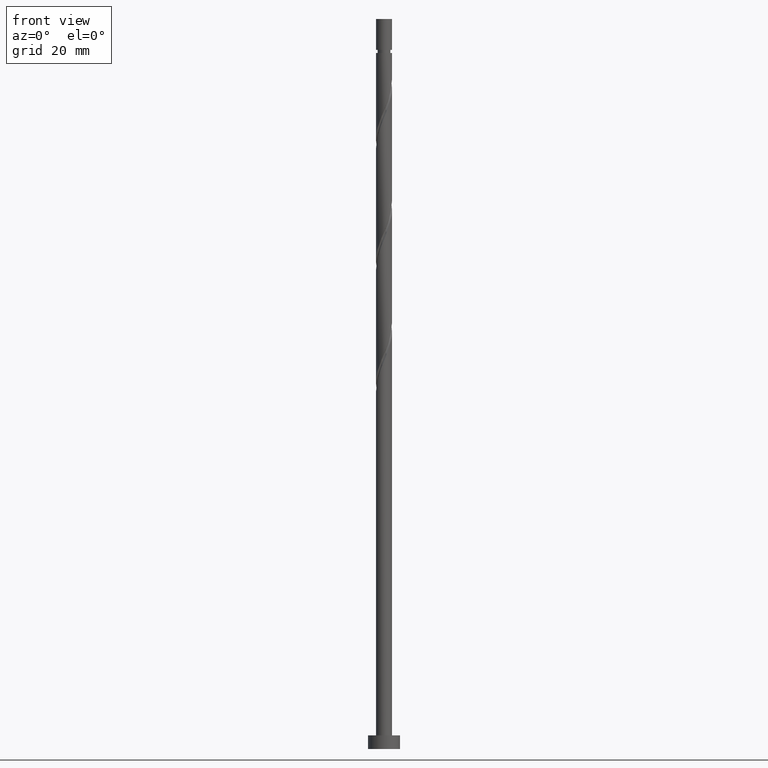
[diagram: clean part render]
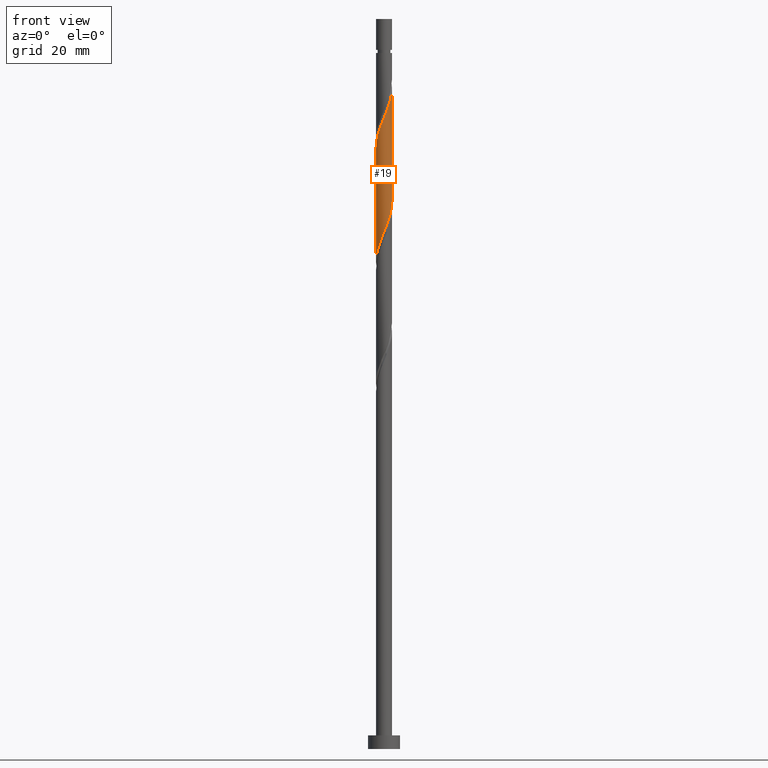
[diagram: same view with one face highlighted and labeled with its STEP entity id]
A machine part, front view. The second image highlights one B-rep face of the part: STEP entity #19.
In plain terms, the highlighted cylindrical surface (edge-blend (fillet) strip) has radius 1.75 mm, axis along (-0, -0, -1).
Its self-contained STEP definition (entity closure, byte-faithful):
#1 = DIRECTION ( 'NONE',  ( -1.000000000000000000, 0.000000000000000000, 0.000000000000000000 ) ) ;
#11 = CARTESIAN_POINT ( 'NONE',  ( 0.1490321258245759506, -1.743642573887265179, 113.7451609396642596 ) ) ;
#19 = ADVANCED_FACE ( 'NONE', ( #1045 ), #175, .T. ) ;
#40 = CARTESIAN_POINT ( 'NONE',  ( -1.068058148852061517, -1.386272624944573373, 135.5633427578460726 ) ) ;
#81 = CARTESIAN_POINT ( 'NONE',  ( 1.750000000000000222, -0.05035717141668877295, 119.9270628687924045 ) ) ;
#92 = ORIENTED_EDGE ( 'NONE', *, *, #239, .F. ) ;
#107 = ORIENTED_EDGE ( 'NONE', *, *, #546, .F. ) ;
#108 = CARTESIAN_POINT ( 'NONE',  ( 1.747104289494322282, -0.1006310172389183466, 119.8057670002703219 ) ) ;
#113 =( BOUNDED_CURVE ( )  B_SPLINE_CURVE ( 2, ( #1348, #81, #108, #1514, #1449, #927, #315, #1325, #872, #1496, #812, #1335, #11, #271, #147, #226, #968, #1485, #986, #211, #1631, #1092, #474, #116, #1373 ),
 .UNSPECIFIED., .F., .T. ) 
 B_SPLINE_CURVE_WITH_KNOTS ( ( 3, 2, 2, 2, 2, 2, 2, 2, 2, 2, 2, 2, 3 ),
 ( 0.5545252162417512176, 0.5568181818181817677, 0.5681818181818182323, 0.5795454545454545858, 0.5909090909090909394, 0.6022727272727272929, 0.6136363636363636465, 0.6250000000000000000, 0.6363636363636363535, 0.6477272727272727071, 0.6590909090909090606, 0.6704545454545454142, 0.6795252162417513286 ),
 .UNSPECIFIED. ) 
 CURVE ( )  GEOMETRIC_REPRESENTATION_ITEM ( )  RATIONAL_B_SPLINE_CURVE ( ( 0.9061101570135631222, 0.9072237824201452305, 0.9090909090909228274, 0.8998376744372251768, 0.9090909090909228274, 0.8998376744372251768, 0.9090909090909228274, 0.8998376744372251768, 0.9090909090909228274, 0.8998376744372251768, 0.9090909090909228274, 0.8998376744372251768, 0.9090909090909228274, 0.8998376744372251768, 0.9090909090909228274, 0.8998376744372251768, 0.9090909090909228274, 0.8998376744372251768, 0.9090909090909228274, 0.8998376744372251768, 0.9090909090909228274, 0.8998376744372251768, 0.9090909090909228274, 0.9017048011080026626, 0.9061101570135631222 ) ) 
 REPRESENTATION_ITEM ( '' )  );
#116 = CARTESIAN_POINT ( 'NONE',  ( -1.749999999999999778, -0.2004256229239634035, 107.2017874931485437 ) ) ;
#147 = CARTESIAN_POINT ( 'NONE',  ( -0.3482456029873181036, -1.714999999999999636, 112.5330397275430272 ) ) ;
#154 = CARTESIAN_POINT ( 'NONE',  ( -1.750000000000002665, 6.655785213055830703E-16, 131.6835852482421103 ) ) ;
#171 = CARTESIAN_POINT ( 'NONE',  ( -1.563330778801824472, -0.8257151336188613966, 133.7451609396642311 ) ) ;
#175 = CYLINDRICAL_SURFACE ( 'NONE', #1581, 1.750000000000000000 ) ;
#179 = CARTESIAN_POINT ( 'NONE',  ( 0.1016658287859384807, -1.765070158688770041, 138.5936457881490753 ) ) ;
#211 = CARTESIAN_POINT ( 'NONE',  ( -1.400527980390354532, -1.079041232752500523, 109.5027366972400102 ) ) ;
#226 = CARTESIAN_POINT ( 'NONE',  ( -0.5948253771886971020, -1.664929841311231895, 111.9269791214824323 ) ) ;
#229 = DIRECTION ( 'NONE',  ( -0.000000000000000000, -0.000000000000000000, -1.000000000000000000 ) ) ;
#239 = EDGE_CURVE ( 'NONE', #423, #568, #1070, .T. ) ;
#271 = CARTESIAN_POINT ( 'NONE',  ( -0.1016658287859391052, -1.765070158688767377, 113.1391003336036079 ) ) ;
#284 = ORIENTED_EDGE ( 'NONE', *, *, #429, .F. ) ;
#298 = CARTESIAN_POINT ( 'NONE',  ( -1.747104289494325169, -0.1006310172389177221, 131.9269791214824750 ) ) ;
#305 = CARTESIAN_POINT ( 'NONE',  ( -0.8687422358255979526, -1.539836203473951892, 136.1694033639066959 ) ) ;
#309 = CARTESIAN_POINT ( 'NONE',  ( 1.039795711094358976, -1.429906809909690768, 141.0178882123915116 ) ) ;
#315 = CARTESIAN_POINT ( 'NONE',  ( 1.415352420340172612, -1.029212090017026293, 117.3815245760278856 ) ) ;
#377 = EDGE_LOOP ( 'NONE', ( #284, #92, #654, #107 ) ) ;
#382 = VECTOR ( 'NONE', #229, 1000.000000000000000 ) ;
#423 = VERTEX_POINT ( 'NONE', #710 ) ;
#429 = EDGE_CURVE ( 'NONE', #568, #933, #971, .T. ) ;
#465 = CARTESIAN_POINT ( 'NONE',  ( -1.750000000000000000, 0.000000000000000000, 160.0000000000000000 ) ) ;
#474 = CARTESIAN_POINT ( 'NONE',  ( -1.704685323725825041, -0.3956614045794436541, 107.6845548790582114 ) ) ;
#524 = CARTESIAN_POINT ( 'NONE',  ( -1.749999999999999778, 2.295871977986692479E-15, 106.7158275401772585 ) ) ;
#537 = CARTESIAN_POINT ( 'NONE',  ( 1.750000000000002442, -0.2004256229239684828, 144.5309586286041679 ) ) ;
#546 = EDGE_CURVE ( 'NONE', #933, #1505, #113, .T. ) ;
#568 = VERTEX_POINT ( 'NONE', #1625 ) ;
#644 = CARTESIAN_POINT ( 'NONE',  ( 0.000000000000000000, 0.000000000000000000, 160.0000000000000000 ) ) ;
#654 = ORIENTED_EDGE ( 'NONE', *, *, #1423, .T. ) ;
#659 = CARTESIAN_POINT ( 'NONE',  ( -1.415352420340175277, -1.029212090017027847, 134.3512215457248828 ) ) ;
#710 = CARTESIAN_POINT ( 'NONE',  ( -1.750000000000002665, 6.655785213055831689E-16, 131.6835852482421103 ) ) ;
#780 = CARTESIAN_POINT ( 'NONE',  ( 1.524162891183048707, -0.8598996924877582160, 142.8360700305733815 ) ) ;
#787 = CARTESIAN_POINT ( 'NONE',  ( -1.647983256157279808, -0.5887709125162861046, 133.1391003336036931 ) ) ;
#790 = CARTESIAN_POINT ( 'NONE',  ( 0.3482456029873179926, -1.715000000000002300, 139.1997063942096986 ) ) ;
#797 = CARTESIAN_POINT ( 'NONE',  ( -0.3997300804350925607, -1.722214989085766534, 137.3815245760278287 ) ) ;
#812 = CARTESIAN_POINT ( 'NONE',  ( 0.6342361581303435081, -1.631025596279856549, 114.9572821517854777 ) ) ;
#835 = DIRECTION ( 'NONE',  ( -0.000000000000000000, -0.000000000000000000, -1.000000000000000000 ) ) ;
#849 = CARTESIAN_POINT ( 'NONE',  ( 1.750000000000000000, 2.143131898507868297E-16, 160.0000000000000000 ) ) ;
#871 = DIRECTION ( 'NONE',  ( -0.000000000000000000, -0.000000000000000000, -1.000000000000000000 ) ) ;
#872 = CARTESIAN_POINT ( 'NONE',  ( 1.068058148852059297, -1.386272624944571152, 116.1694033639066816 ) ) ;
#902 = CARTESIAN_POINT ( 'NONE',  ( 1.750000000000000000, 2.206131053765714330E-15, 120.0491608735106155 ) ) ;
#913 = CARTESIAN_POINT ( 'NONE',  ( 0.5948253771886973240, -1.664929841311235892, 139.8057670002703503 ) ) ;
#927 = CARTESIAN_POINT ( 'NONE',  ( 1.563330778801821141, -0.8257151336188601753, 117.9875851820885089 ) ) ;
#928 = CARTESIAN_POINT ( 'NONE',  ( -1.732635733512734477, -0.3518266914137117563, 132.5330397275430414 ) ) ;
#931 = CARTESIAN_POINT ( 'NONE',  ( 1.400527980390356753, -1.079041232752502744, 142.2300094245127298 ) ) ;
#933 = VERTEX_POINT ( 'NONE', #902 ) ;
#968 = CARTESIAN_POINT ( 'NONE',  ( -0.8173105441415272621, -1.547418325610460110, 111.3209185154218375 ) ) ;
#971 = LINE ( 'NONE', #849, #382 ) ;
#986 = CARTESIAN_POINT ( 'NONE',  ( -1.220161845742356199, -1.254474021331094313, 110.1087973033006335 ) ) ;
#1030 = CARTESIAN_POINT ( 'NONE',  ( 1.647797801975740661, -0.6407581522230126891, 143.4421306366339479 ) ) ;
#1045 = FACE_OUTER_BOUND ( 'NONE', #377, .T. ) ;
#1049 = CARTESIAN_POINT ( 'NONE',  ( -0.6342361581303455065, -1.631025596279859213, 136.7754639699672907 ) ) ;
#1070 =( BOUNDED_CURVE ( )  B_SPLINE_CURVE ( 2, ( #154, #1582, #298, #928, #787, #171, #659, #1450, #40, #305, #1049, #797, #1316, #179, #790, #913, #1308, #309, #1462, #931, #780, #1030, #1300, #537, #1573 ),
 .UNSPECIFIED., .F., .T. ) 
 B_SPLINE_CURVE_WITH_KNOTS ( ( 3, 2, 2, 2, 2, 2, 2, 2, 2, 2, 2, 2, 3 ),
 ( 0.5545252162417507735, 0.5568181818181818787, 0.5681818181818181213, 0.5795454545454545858, 0.5909090909090908283, 0.6022727272727272929, 0.6136363636363636465, 0.6250000000000000000, 0.6363636363636363535, 0.6477272727272727071, 0.6590909090909091717, 0.6704545454545454142, 0.6795252162417512176 ),
 .UNSPECIFIED. ) 
 CURVE ( )  GEOMETRIC_REPRESENTATION_ITEM ( )  RATIONAL_B_SPLINE_CURVE ( ( 0.9061101570135696726, 0.9072237824201518919, 0.9090909090909298218, 0.8998376744372320601, 0.9090909090909298218, 0.8998376744372320601, 0.9090909090909298218, 0.8998376744372320601, 0.9090909090909298218, 0.8998376744372320601, 0.9090909090909298218, 0.8998376744372320601, 0.9090909090909298218, 0.8998376744372320601, 0.9090909090909298218, 0.8998376744372320601, 0.9090909090909298218, 0.8998376744372320601, 0.9090909090909298218, 0.8998376744372320601, 0.9090909090909298218, 0.8998376744372320601, 0.9090909090909298218, 0.9017048011080096570, 0.9061101570135701166 ) ) 
 REPRESENTATION_ITEM ( '' )  );
#1092 = CARTESIAN_POINT ( 'NONE',  ( -1.647797801975737775, -0.6407581522230115789, 108.2906154851187779 ) ) ;
#1213 = VECTOR ( 'NONE', #835, 1000.000000000000000 ) ;
#1300 = CARTESIAN_POINT ( 'NONE',  ( 1.704685323725828150, -0.3956614045794445977, 144.0481912426945428 ) ) ;
#1308 = CARTESIAN_POINT ( 'NONE',  ( 0.8173105441415277062, -1.547418325610463441, 140.4118276063309168 ) ) ;
#1316 = CARTESIAN_POINT ( 'NONE',  ( -0.1490321258245771163, -1.743642573887268510, 137.9875851820885089 ) ) ;
#1325 = CARTESIAN_POINT ( 'NONE',  ( 1.267374061878523861, -1.232709046415192411, 116.7754639699672765 ) ) ;
#1335 = CARTESIAN_POINT ( 'NONE',  ( 0.3997300804350918391, -1.722214989085762982, 114.3512215457248544 ) ) ;
#1348 = CARTESIAN_POINT ( 'NONE',  ( 1.750000000000000000, 2.206131053765713936E-15, 120.0491608735106155 ) ) ;
#1373 = CARTESIAN_POINT ( 'NONE',  ( -1.749999999999999778, 2.295871977986692479E-15, 106.7158275401772585 ) ) ;
#1423 = EDGE_CURVE ( 'NONE', #423, #1505, #1622, .T. ) ;
#1449 = CARTESIAN_POINT ( 'NONE',  ( 1.647983256157276033, -0.5887709125162859936, 118.5936457881491179 ) ) ;
#1450 = CARTESIAN_POINT ( 'NONE',  ( -1.267374061878525415, -1.232709046415194631, 134.9572821517854493 ) ) ;
#1462 = CARTESIAN_POINT ( 'NONE',  ( 1.220161845742357754, -1.254474021331096756, 141.6239488184521633 ) ) ;
#1485 = CARTESIAN_POINT ( 'NONE',  ( -1.039795711094356978, -1.429906809909688326, 110.7148579093612284 ) ) ;
#1496 = CARTESIAN_POINT ( 'NONE',  ( 0.8687422358255952881, -1.539836203473949450, 115.5633427578460726 ) ) ;
#1505 = VERTEX_POINT ( 'NONE', #524 ) ;
#1514 = CARTESIAN_POINT ( 'NONE',  ( 1.732635733512731591, -0.3518266914137117007, 119.1997063942097128 ) ) ;
#1573 = CARTESIAN_POINT ( 'NONE',  ( 1.750000000000002665, -7.254058041195681740E-16, 145.0169185815754531 ) ) ;
#1581 = AXIS2_PLACEMENT_3D ( 'NONE', #644, #871, #1 ) ;
#1582 = CARTESIAN_POINT ( 'NONE',  ( -1.750000000000003775, -0.05035717141667633151, 131.8056832529603355 ) ) ;
#1622 = LINE ( 'NONE', #465, #1213 ) ;
#1625 = CARTESIAN_POINT ( 'NONE',  ( 1.750000000000002665, -7.254058041195681740E-16, 145.0169185815754531 ) ) ;
#1631 = CARTESIAN_POINT ( 'NONE',  ( -1.524162891183046042, -0.8598996924877561066, 108.8966760911794012 ) ) ;